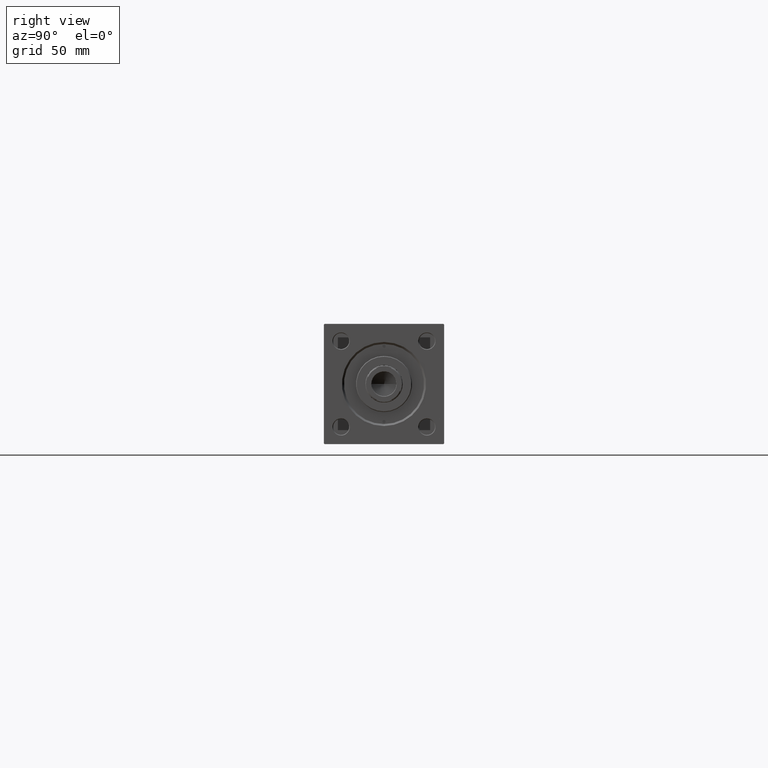
[diagram: clean part render]
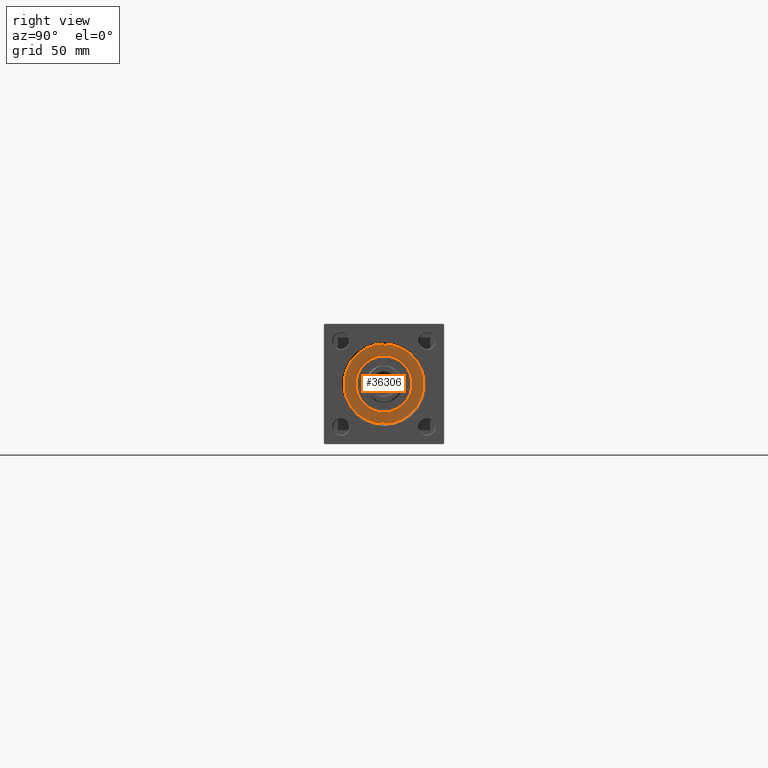
[diagram: same view with one face highlighted and labeled with its STEP entity id]
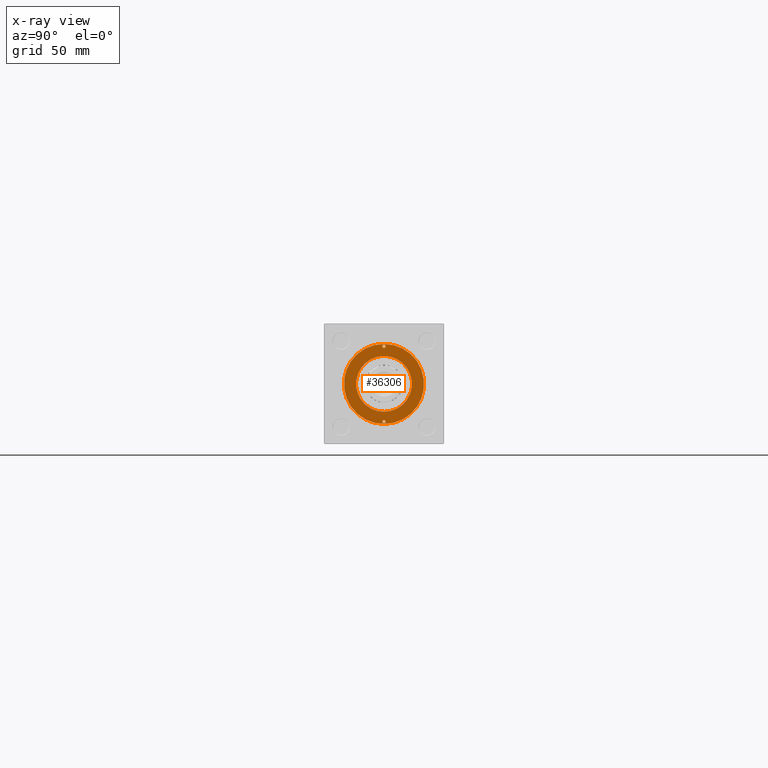
[diagram: x-ray of the same camera — body ghosted, the highlighted face saturated]
A machine part, right view. The second image highlights one B-rep face of the part: STEP entity #36306.
The next image is the same camera in x-ray: the body ghosted, the highlighted face saturated — about 0% of this face is hidden behind the body in this view.
In plain terms, the highlighted planar face has unit normal (1, 0, 0).
Its self-contained STEP definition (entity closure, byte-faithful):
#216 = VERTEX_POINT ( 'NONE', #25346 ) ;
#658 = FACE_OUTER_BOUND ( 'NONE', #23311, .T. ) ;
#1194 = AXIS2_PLACEMENT_3D ( 'NONE', #14062, #1660, #22706 ) ;
#1660 = DIRECTION ( 'NONE',  ( 0.000000000000000000, 0.000000000000000000, 1.000000000000000000 ) ) ;
#2140 = DIRECTION ( 'NONE',  ( 0.000000000000000000, 0.000000000000000000, 1.000000000000000000 ) ) ;
#3809 = CARTESIAN_POINT ( 'NONE',  ( -21.00000000000000000, 0.000000000000000000, 28.69999999999999929 ) ) ;
#4595 = AXIS2_PLACEMENT_3D ( 'NONE', #41961, #7079, #34292 ) ;
#4661 = CIRCLE ( 'NONE', #43648, 21.00000000000000000 ) ;
#5978 = ORIENTED_EDGE ( 'NONE', *, *, #33573, .F. ) ;
#6272 = DIRECTION ( 'NONE',  ( 1.000000000000000000, 0.000000000000000000, 0.000000000000000000 ) ) ;
#6392 = CARTESIAN_POINT ( 'NONE',  ( 28.25000000000000000, 0.000000000000000000, 28.69999999999999929 ) ) ;
#7079 = DIRECTION ( 'NONE',  ( 0.000000000000000000, 0.000000000000000000, 1.000000000000000000 ) ) ;
#7684 = VERTEX_POINT ( 'NONE', #49814 ) ;
#7823 = PLANE ( 'NONE',  #34848 ) ;
#8042 = CARTESIAN_POINT ( 'NONE',  ( -28.25000000000000000, 0.000000000000000000, 28.69999999999999929 ) ) ;
#8661 = DIRECTION ( 'NONE',  ( 1.000000000000000000, 0.000000000000000000, 0.000000000000000000 ) ) ;
#9469 = CARTESIAN_POINT ( 'NONE',  ( 27.00000000000000355, 1.530808498934192803E-16, 28.69999999999999929 ) ) ;
#9715 = DIRECTION ( 'NONE',  ( 1.000000000000000000, 0.000000000000000000, 0.000000000000000000 ) ) ;
#9782 = CARTESIAN_POINT ( 'NONE',  ( 0.000000000000000000, 0.000000000000000000, 28.69999999999999929 ) ) ;
#10381 = AXIS2_PLACEMENT_3D ( 'NONE', #33108, #48176, #9715 ) ;
#10533 = CARTESIAN_POINT ( 'NONE',  ( -27.00000000000000355, 0.000000000000000000, 28.69999999999999929 ) ) ;
#11012 = CARTESIAN_POINT ( 'NONE',  ( -29.50000000000000000, 1.530808498934192803E-16, 28.69999999999999929 ) ) ;
#12974 = DIRECTION ( 'NONE',  ( 0.000000000000000000, 0.000000000000000000, 1.000000000000000000 ) ) ;
#14062 = CARTESIAN_POINT ( 'NONE',  ( -28.25000000000000000, 0.000000000000000000, 28.69999999999999929 ) ) ;
#15218 = VERTEX_POINT ( 'NONE', #31752 ) ;
#15446 = FACE_BOUND ( 'NONE', #49481, .T. ) ;
#15695 = FACE_BOUND ( 'NONE', #22011, .T. ) ;
#16941 = CIRCLE ( 'NONE', #35520, 1.249999999999997558 ) ;
#18621 = VERTEX_POINT ( 'NONE', #11012 ) ;
#19257 = DIRECTION ( 'NONE',  ( 0.000000000000000000, 0.000000000000000000, 1.000000000000000000 ) ) ;
#19269 = EDGE_CURVE ( 'NONE', #18621, #24537, #44301, .T. ) ;
#20128 = CIRCLE ( 'NONE', #10381, 21.00000000000000000 ) ;
#22011 = EDGE_LOOP ( 'NONE', ( #23083, #22254 ) ) ;
#22043 = DIRECTION ( 'NONE',  ( 0.000000000000000000, 0.000000000000000000, 1.000000000000000000 ) ) ;
#22254 = ORIENTED_EDGE ( 'NONE', *, *, #47249, .F. ) ;
#22328 = VERTEX_POINT ( 'NONE', #3809 ) ;
#22706 = DIRECTION ( 'NONE',  ( 1.000000000000000000, 0.000000000000000000, 0.000000000000000000 ) ) ;
#23083 = ORIENTED_EDGE ( 'NONE', *, *, #42954, .F. ) ;
#23311 = EDGE_LOOP ( 'NONE', ( #28188, #33013 ) ) ;
#23699 = AXIS2_PLACEMENT_3D ( 'NONE', #6392, #33618, #29793 ) ;
#24537 = VERTEX_POINT ( 'NONE', #10533 ) ;
#25346 = CARTESIAN_POINT ( 'NONE',  ( 30.00000000000000000, 3.673940397442059178E-15, 28.69999999999999929 ) ) ;
#26171 = CIRCLE ( 'NONE', #40801, 1.249999999999997558 ) ;
#26545 = CIRCLE ( 'NONE', #4595, 30.00000000000000000 ) ;
#27282 = EDGE_CURVE ( 'NONE', #15218, #216, #26545, .T. ) ;
#27641 = CARTESIAN_POINT ( 'NONE',  ( 0.000000000000000000, 0.000000000000000000, 28.69999999999999929 ) ) ;
#28188 = ORIENTED_EDGE ( 'NONE', *, *, #27282, .T. ) ;
#29793 = DIRECTION ( 'NONE',  ( 1.000000000000000000, 0.000000000000000000, 0.000000000000000000 ) ) ;
#30321 = CARTESIAN_POINT ( 'NONE',  ( 21.00000000000000000, 2.571758278209441661E-15, 28.69999999999999929 ) ) ;
#30961 = CIRCLE ( 'NONE', #37456, 30.00000000000000000 ) ;
#31752 = CARTESIAN_POINT ( 'NONE',  ( -30.00000000000000000, 0.000000000000000000, 28.69999999999999929 ) ) ;
#31927 = EDGE_CURVE ( 'NONE', #24537, #18621, #16941, .T. ) ;
#32208 = EDGE_CURVE ( 'NONE', #22328, #34942, #4661, .T. ) ;
#32307 = CARTESIAN_POINT ( 'NONE',  ( 0.000000000000000000, 0.000000000000000000, 28.69999999999999929 ) ) ;
#33013 = ORIENTED_EDGE ( 'NONE', *, *, #40269, .T. ) ;
#33108 = CARTESIAN_POINT ( 'NONE',  ( 0.000000000000000000, 0.000000000000000000, 28.69999999999999929 ) ) ;
#33573 = EDGE_CURVE ( 'NONE', #34942, #22328, #20128, .T. ) ;
#33618 = DIRECTION ( 'NONE',  ( 0.000000000000000000, 0.000000000000000000, 1.000000000000000000 ) ) ;
#34274 = ORIENTED_EDGE ( 'NONE', *, *, #19269, .F. ) ;
#34292 = DIRECTION ( 'NONE',  ( 1.000000000000000000, 0.000000000000000000, 0.000000000000000000 ) ) ;
#34773 = FACE_BOUND ( 'NONE', #35763, .T. ) ;
#34848 = AXIS2_PLACEMENT_3D ( 'NONE', #27641, #19257, #50343 ) ;
#34942 = VERTEX_POINT ( 'NONE', #30321 ) ;
#35520 = AXIS2_PLACEMENT_3D ( 'NONE', #8042, #38586, #39073 ) ;
#35763 = EDGE_LOOP ( 'NONE', ( #45751, #5978 ) ) ;
#36306 = ADVANCED_FACE ( 'NONE', ( #15446, #15695, #34773, #658 ), #7823, .T. ) ;
#37456 = AXIS2_PLACEMENT_3D ( 'NONE', #32307, #12974, #8661 ) ;
#38586 = DIRECTION ( 'NONE',  ( 0.000000000000000000, 0.000000000000000000, 1.000000000000000000 ) ) ;
#39073 = DIRECTION ( 'NONE',  ( 1.000000000000000000, 0.000000000000000000, 0.000000000000000000 ) ) ;
#40269 = EDGE_CURVE ( 'NONE', #216, #15218, #30961, .T. ) ;
#40801 = AXIS2_PLACEMENT_3D ( 'NONE', #45216, #22043, #6272 ) ;
#41961 = CARTESIAN_POINT ( 'NONE',  ( 0.000000000000000000, 0.000000000000000000, 28.69999999999999929 ) ) ;
#42954 = EDGE_CURVE ( 'NONE', #7684, #48239, #45655, .T. ) ;
#43648 = AXIS2_PLACEMENT_3D ( 'NONE', #9782, #2140, #45158 ) ;
#44301 = CIRCLE ( 'NONE', #1194, 1.249999999999997558 ) ;
#45158 = DIRECTION ( 'NONE',  ( 1.000000000000000000, 0.000000000000000000, 0.000000000000000000 ) ) ;
#45216 = CARTESIAN_POINT ( 'NONE',  ( 28.25000000000000000, 0.000000000000000000, 28.69999999999999929 ) ) ;
#45243 = ORIENTED_EDGE ( 'NONE', *, *, #31927, .F. ) ;
#45655 = CIRCLE ( 'NONE', #23699, 1.249999999999997558 ) ;
#45751 = ORIENTED_EDGE ( 'NONE', *, *, #32208, .F. ) ;
#47249 = EDGE_CURVE ( 'NONE', #48239, #7684, #26171, .T. ) ;
#48176 = DIRECTION ( 'NONE',  ( 0.000000000000000000, 0.000000000000000000, 1.000000000000000000 ) ) ;
#48239 = VERTEX_POINT ( 'NONE', #9469 ) ;
#49481 = EDGE_LOOP ( 'NONE', ( #45243, #34274 ) ) ;
#49814 = CARTESIAN_POINT ( 'NONE',  ( 29.50000000000000000, 0.000000000000000000, 28.69999999999999929 ) ) ;
#50343 = DIRECTION ( 'NONE',  ( 1.000000000000000000, 0.000000000000000000, -0.000000000000000000 ) ) ;